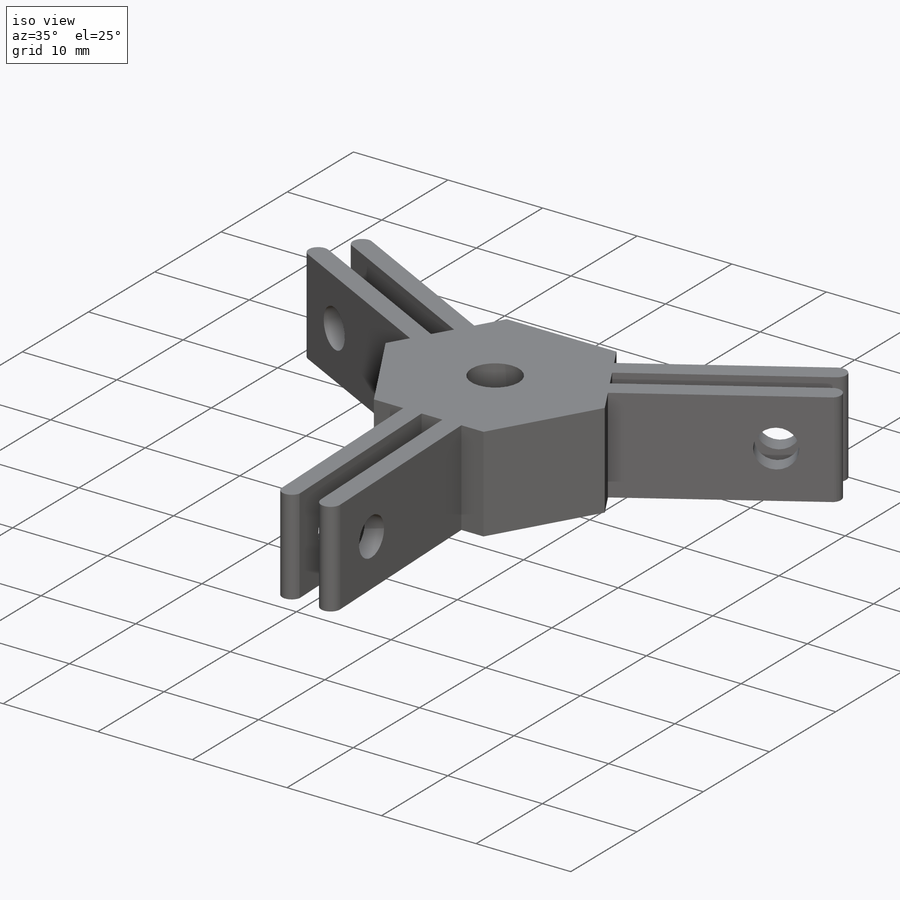
[diagram: iso view]
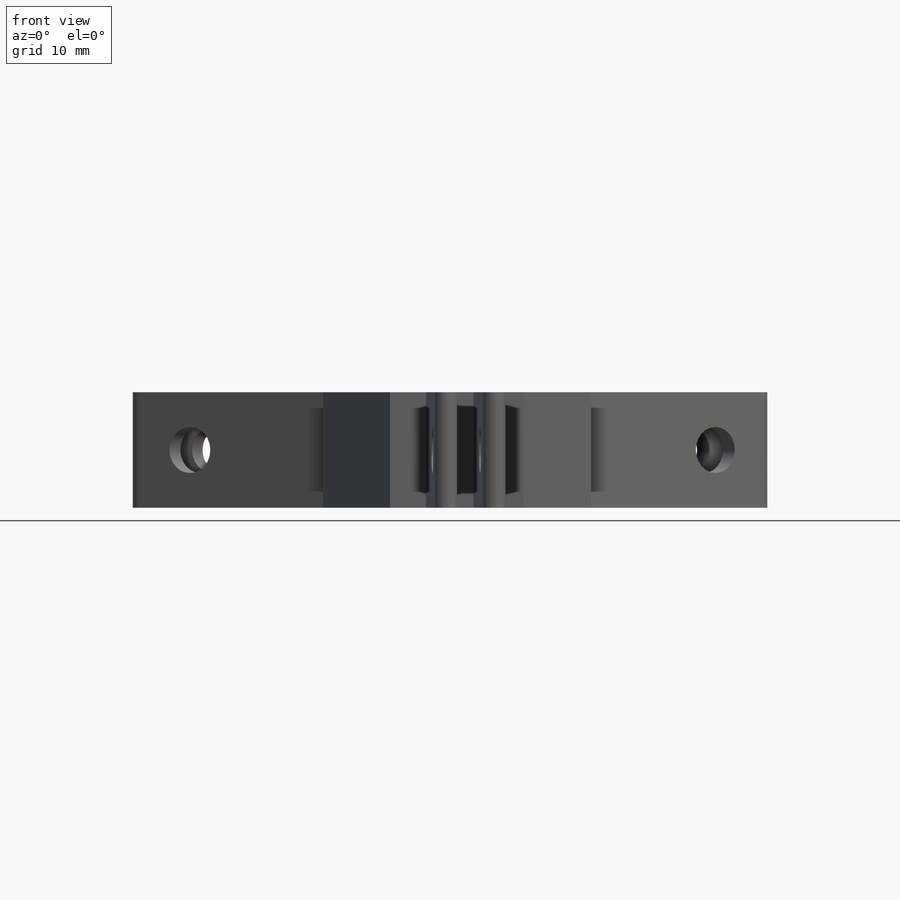
[diagram: front view]
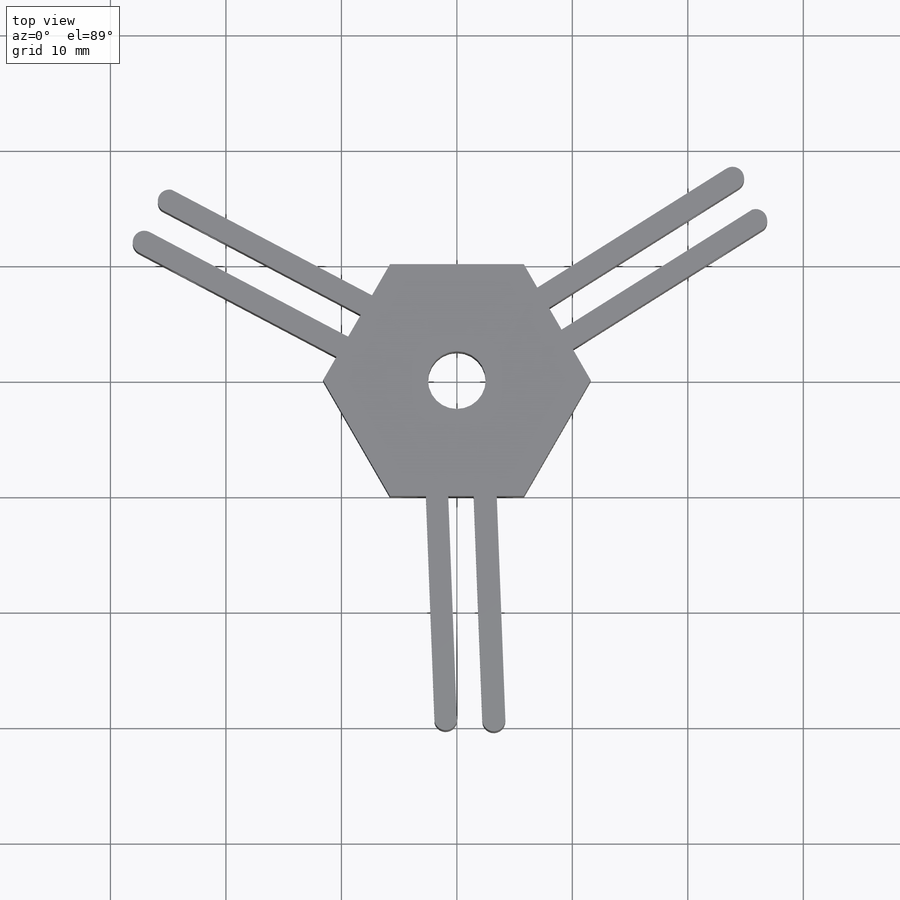
[diagram: top view]
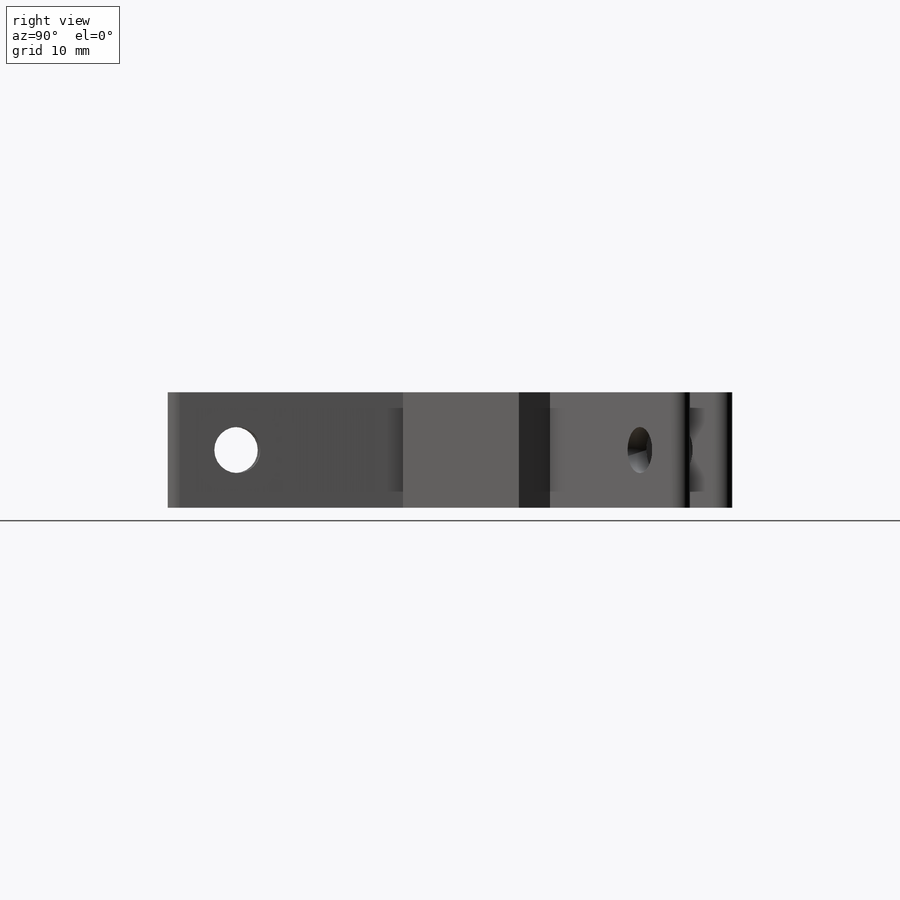
[diagram: right view]
SOLIDWORKS PART (.sldprt)
format: sldprt  version: not decoded by parser v0  size: 231,424 bytes
history: native  units: mm
features: sketch x3, extrude x2, material x1, cut_extrude x1, pattern_circular x1 (+13 scaffold rows collapsed)
feature tree (21):
  scaffold x13  (default folders/planes/origin — collapsed)
  material  "Material <not specified>"
  sketch  "Sketch1"  dims[D1=20.0mm D2=5.0mm D3=2.0mm D4=20.0mm D5=2.2mm D6=3.0]
  extrude  "Boss-Extrude1"  Depth=10mm
  sketch  "Sketch2"  dims[c1.D1=~2.11277mm c1.D3=4.0mm c2.D1=5.0mm c2.D2=5.0mm]
  cut_extrude  "Cut-Extrude1"  Depth=10mm
  pattern_circular  "CirPattern1"  Count=3 Angle=360deg
  sketch  "Sketch3"
  extrude  "Boss-Extrude3"  Depth=10mm
decode coverage: 6 of 7 modeling features carry decoded parameters
note: ~ marks probable driven/reference dimensions
note: suppression state not decoded; provenance and decode notes live in map.json
